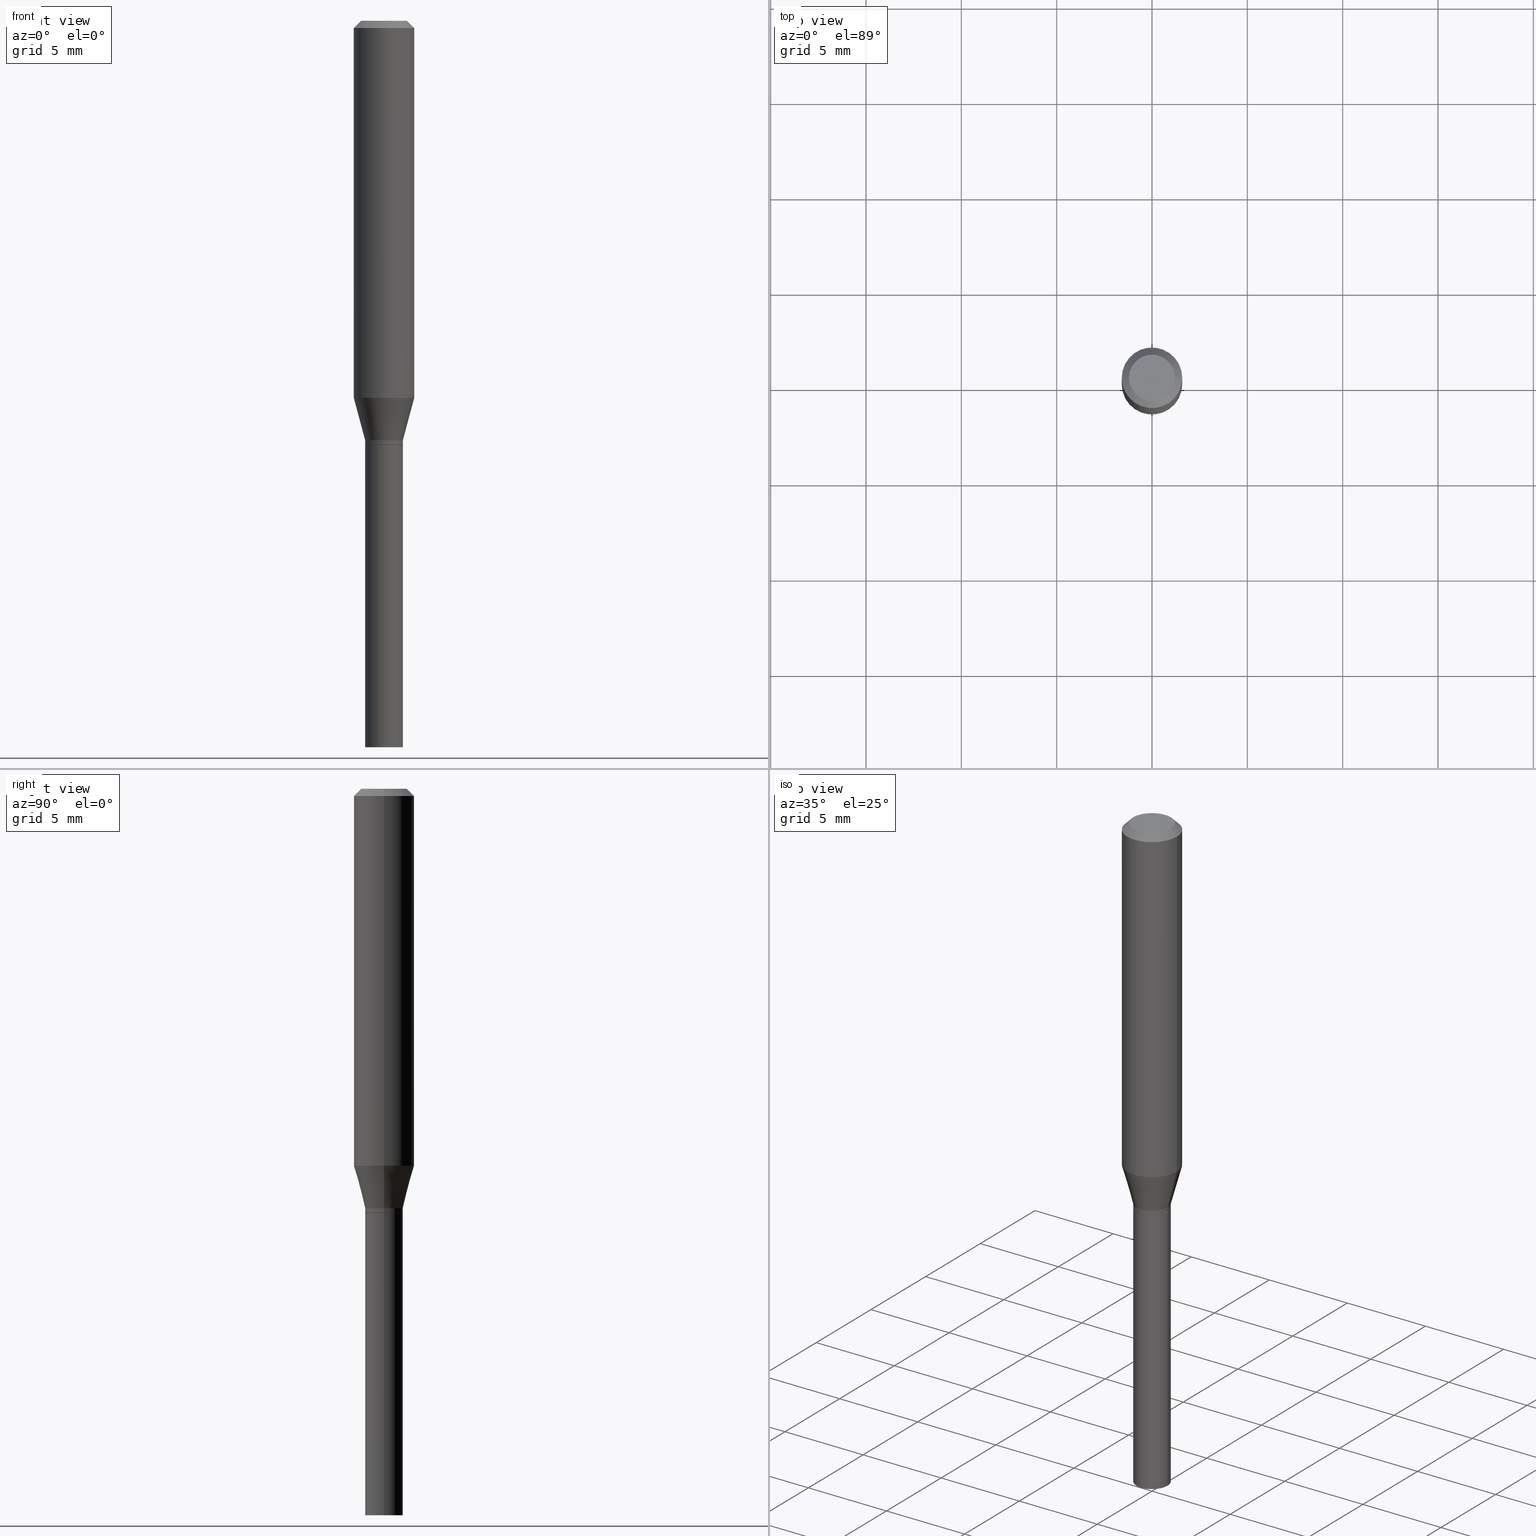
[diagram: canonical four-view strip — front | top / right | iso, engineering-drawing reading convention]
A machine part, canonical four-view strip (front | top / right | iso — engineering-drawing reading convention). The complete STEP part file that produces these views, byte-faithful:
ISO-10303-21;
HEADER;
FILE_DESCRIPTION (( 'STEP AP203' ),
    '1' );
FILE_NAME ('04227.STEP',
    '2024-03-14T17:24:22',
    ( '' ),
    ( '' ),
    'SwSTEP 2.0',
    'SolidWorks 2023',
    '' );
FILE_SCHEMA (( 'CONFIG_CONTROL_DESIGN' ));
ENDSEC;

DATA;
#1 = FACE_OUTER_BOUND ( 'NONE', #388, .T. ) ;
#2 = ORIENTED_EDGE ( 'NONE', *, *, #35, .F. ) ;
#3 = CARTESIAN_POINT ( 'NONE',  ( 3.668203209277705088E-31, -5.237222008264718399E-17, -0.01499999999999999944 ) ) ;
#4 = DESIGN_CONTEXT ( 'detailed design', #390, 'design' ) ;
#5 = LINE ( 'NONE', #8, #370 ) ;
#6 = CIRCLE ( 'NONE', #85, 0.03899999999999999994 ) ;
#7 = DIRECTION ( 'NONE',  ( 1.000000000000000000, -6.982962677686266711E-15, 4.876176775795935793E-29 ) ) ;
#8 = CARTESIAN_POINT ( 'NONE',  ( -0.03900000000000005546, 2.771116669464394665E-16, -1.918384685199416231E-30 ) ) ;
#9 = DIRECTION ( 'NONE',  ( -2.438088387897960049E-29, 3.491481338843145188E-15, 1.000000000000000000 ) ) ;
#10 = ORIENTED_EDGE ( 'NONE', *, *, #355, .F. ) ;
#11 = APPLICATION_PROTOCOL_DEFINITION ( 'international standard', 'config_control_design', 1994, #339 ) ;
#12 = EDGE_CURVE ( 'NONE', #397, #350, #5, .T. ) ;
#13 = DIRECTION ( 'NONE',  ( -2.445468806185136877E-29, 3.491481338843145188E-15, 1.000000000000000000 ) ) ;
#14 = CIRCLE ( 'NONE', #351, 0.03849999999999999256 ) ;
#15 = PRODUCT_DEFINITION_FORMATION_WITH_SPECIFIED_SOURCE ( 'ANY', '', #52, .NOT_KNOWN. ) ;
#16 = DIRECTION ( 'NONE',  ( 1.000000000000000000, -6.982962677686271444E-15, 0.000000000000000000 ) ) ;
#17 = DIRECTION ( 'NONE',  ( 0.2588190451025214611, 1.565188264969621573E-15, 0.9659258262890682012 ) ) ;
#18 = CARTESIAN_POINT ( 'NONE',  ( 0.03900000000000005546, -3.295958383867929689E-15, -0.8660000000000001030 ) ) ;
#19 = APPROVAL ( #444, 'UNSPECIFIED' ) ;
#20 = CIRCLE ( 'NONE', #195, 0.03900000000000005546 ) ;
#21 = APPROVAL_PERSON_ORGANIZATION ( #164, #229, #157 ) ;
#22 = EDGE_CURVE ( 'NONE', #329, #260, #121, .T. ) ;
#23 = CARTESIAN_POINT ( 'NONE',  ( 2.142230674218180125E-29, -3.058537652826596131E-15, -0.8760000000000001119 ) ) ;
#24 = DIRECTION ( 'NONE',  ( -0.7071067811865656694, 7.493145998870420424E-15, 0.7071067811865294761 ) ) ;
#25 = VERTEX_POINT ( 'NONE', #405 ) ;
#26 = CARTESIAN_POINT ( 'NONE',  ( 3.316907271900976096E-16, 0.04749999999999999362, 9.606345999275830148E-17 ) ) ;
#27 = VECTOR ( 'NONE', #419, 39.37007874015748143 ) ;
#28 = ORIENTED_EDGE ( 'NONE', *, *, #432, .T. ) ;
#29 = AXIS2_PLACEMENT_3D ( 'NONE', #413, #380, #105 ) ;
#30 = DIRECTION ( 'NONE',  ( -2.445468806185136597E-29, 3.491481338843145583E-15, 1.000000000000000000 ) ) ;
#31 = VERTEX_POINT ( 'NONE', #156 ) ;
#32 = CYLINDRICAL_SURFACE ( 'NONE', #270, 0.03900000000000005546 ) ;
#33 = EDGE_LOOP ( 'NONE', ( #181, #68, #353, #206 ) ) ;
#34 = FACE_OUTER_BOUND ( 'NONE', #33, .T. ) ;
#35 = EDGE_CURVE ( 'NONE', #439, #179, #226, .T. ) ;
#36 = DIRECTION ( 'NONE',  ( 1.000000000000000000, -6.982962677686262766E-15, 0.000000000000000000 ) ) ;
#37 = ORIENTED_EDGE ( 'NONE', *, *, #355, .T. ) ;
#38 = CARTESIAN_POINT ( 'NONE',  ( 0.03900000000000005546, -3.329127456586939440E-15, -0.8755000000000001670 ) ) ;
#39 = ORIENTED_EDGE ( 'NONE', *, *, #254, .F. ) ;
#40 = CC_DESIGN_DATE_AND_TIME_ASSIGNMENT ( #309, #448, ( #92 ) ) ;
#41 = CYLINDRICAL_SURFACE ( 'NONE', #464, 0.03900000000000005546 ) ;
#42 = ADVANCED_FACE ( 'NONE', ( #217 ), #51, .T. ) ;
#43 = VERTEX_POINT ( 'NONE', #221 ) ;
#44 = CONICAL_SURFACE ( 'NONE', #455, 0.06250000000000000000, 0.7853981633974309595 ) ;
#45 = DIRECTION ( 'NONE',  ( -2.445468806185136597E-29, 3.491481338843145583E-15, 1.000000000000000000 ) ) ;
#46 = CC_DESIGN_SECURITY_CLASSIFICATION ( #92, ( #15 ) ) ;
#47 = VERTEX_POINT ( 'NONE', #371 ) ;
#48 =( NAMED_UNIT ( * ) PLANE_ANGLE_UNIT ( ) SI_UNIT ( $, .RADIAN. ) );
#49 = EDGE_CURVE ( 'NONE', #212, #77, #264, .T. ) ;
#50 = LENGTH_MEASURE_WITH_UNIT ( LENGTH_MEASURE( 0.02539999999999999897 ), #162 );
#51 = CONICAL_SURFACE ( 'NONE', #417, 0.06250000000000000000, 0.7853981633974309595 ) ;
#52 = PRODUCT ( '04227', '04227', '', ( #188 ) ) ;
#53 = COORDINATED_UNIVERSAL_TIME_OFFSET ( 5, 0, .BEHIND. ) ;
#54 = CARTESIAN_POINT ( 'NONE',  ( -0.04749999999999999362, 3.578768372314219874E-16, 5.238176471756130292E-16 ) ) ;
#55 = COORDINATED_UNIVERSAL_TIME_OFFSET ( 5, 0, .BEHIND. ) ;
#56 = CARTESIAN_POINT ( 'NONE',  ( 0.06250000000000000000, -4.364351673553916694E-16, 3.047610484872459871E-30 ) ) ;
#57 = COORDINATED_UNIVERSAL_TIME_OFFSET ( 5, 0, .BEHIND. ) ;
#58 = DIRECTION ( 'NONE',  ( 1.000000000000000000, -6.982962677686267499E-15, 4.852736867747366768E-29 ) ) ;
#59 = AXIS2_PLACEMENT_3D ( 'NONE', #23, #272, #338 ) ;
#60 = APPROVAL_ROLE ( '' ) ;
#61 = DIRECTION ( 'NONE',  ( -2.445468806185136877E-29, 3.491481338843145188E-15, 1.000000000000000000 ) ) ;
#62 = SECURITY_CLASSIFICATION_LEVEL ( 'unclassified' ) ;
#63 = DIRECTION ( 'NONE',  ( -2.445468806185136877E-29, 3.491481338843145188E-15, 1.000000000000000000 ) ) ;
#64 = EDGE_LOOP ( 'NONE', ( #204, #262, #100, #143 ) ) ;
#65 = EDGE_CURVE ( 'NONE', #397, #329, #231, .T. ) ;
#66 = FACE_OUTER_BOUND ( 'NONE', #158, .T. ) ;
#67 = CIRCLE ( 'NONE', #108, 0.04749999999999999362 ) ;
#68 = ORIENTED_EDGE ( 'NONE', *, *, #224, .T. ) ;
#69 = APPROVAL_PERSON_ORGANIZATION ( #278, #19, #60 ) ;
#70 = CARTESIAN_POINT ( 'NONE',  ( -0.06250000000000000000, 4.440892098500626162E-16, -3.074334431409316114E-30 ) ) ;
#71 = MANIFOLD_SOLID_BREP ( 'Body-Move/Copy2[1]', #248 ) ;
#72 = MANIFOLD_SOLID_BREP ( 'Body-Move/Copy2[2]', #305 ) ;
#73 = DIRECTION ( 'NONE',  ( -1.000000000000000000, 6.982962677686265922E-15, -4.876176775795935793E-29 ) ) ;
#74 = EDGE_CURVE ( 'NONE', #77, #212, #67, .T. ) ;
#75 = ORIENTED_EDGE ( 'NONE', *, *, #129, .T. ) ;
#76 = DIRECTION ( 'NONE',  ( -2.445468806185136597E-29, 3.491481338843145583E-15, 1.000000000000000000 ) ) ;
#77 = VERTEX_POINT ( 'NONE', #54 ) ;
#78 = CIRCLE ( 'NONE', #435, 0.06250000000000000000 ) ;
#79 = VECTOR ( 'NONE', #13, 39.37007874015748143 ) ;
#80 = DIRECTION ( 'NONE',  ( -2.445468806185136597E-29, 3.491481338843145583E-15, 1.000000000000000000 ) ) ;
#81 = ORIENTED_EDGE ( 'NONE', *, *, #432, .F. ) ;
#82 = EDGE_LOOP ( 'NONE', ( #458, #37, #106, #153 ) ) ;
#83 =( NAMED_UNIT ( * ) SI_UNIT ( $, .STERADIAN. ) SOLID_ANGLE_UNIT ( ) );
#84 = CARTESIAN_POINT ( 'NONE',  ( 0.03900000000000005546, -2.723355444297648119E-16, 1.901708942560417734E-30 ) ) ;
#85 = AXIS2_PLACEMENT_3D ( 'NONE', #389, #210, #354 ) ;
#86 = PERSON_AND_ORGANIZATION ( #453, #99 ) ;
#87 = CC_DESIGN_APPROVAL ( #165, ( #92 ) ) ;
#88 = DIRECTION ( 'NONE',  ( 0.000000000000000000, 0.000000000000000000, 1.000000000000000000 ) ) ;
#89 = ADVANCED_FACE ( 'NONE', ( #197 ), #412, .F. ) ;
#90 = VECTOR ( 'NONE', #203, 39.37007874015748143 ) ;
#91 = ORIENTED_EDGE ( 'NONE', *, *, #274, .T. ) ;
#92 = SECURITY_CLASSIFICATION ( '', '', #62 ) ;
#93 = CARTESIAN_POINT ( 'NONE',  ( -0.03900000000000005546, -2.746511172491725164E-15, -0.8660000000000001030 ) ) ;
#94 = DIRECTION ( 'NONE',  ( -0.2588190451025214611, 5.211531920934551042E-15, 0.9659258262890682012 ) ) ;
#95 = CC_DESIGN_DATE_AND_TIME_ASSIGNMENT ( #124, #96, ( #396 ) ) ;
#96 = DATE_TIME_ROLE ( 'creation_date' ) ;
#97 = FACE_OUTER_BOUND ( 'NONE', #438, .T. ) ;
#98 = AXIS2_PLACEMENT_3D ( 'NONE', #215, #80, #395 ) ;
#99 = ORGANIZATION ( 'UNSPECIFIED', 'UNSPECIFIED', '' ) ;
#100 = ORIENTED_EDGE ( 'NONE', *, *, #139, .T. ) ;
#101 = DATE_AND_TIME ( #167, #436 ) ;
#102 = LINE ( 'NONE', #93, #376 ) ;
#103 = ORIENTED_EDGE ( 'NONE', *, *, #129, .F. ) ;
#104 = ADVANCED_FACE ( 'NONE', ( #171 ), #200, .T. ) ;
#105 = DIRECTION ( 'NONE',  ( 1.000000000000000000, -6.982962677686273810E-15, 0.000000000000000000 ) ) ;
#106 = ORIENTED_EDGE ( 'NONE', *, *, #238, .T. ) ;
#107 = DIRECTION ( 'NONE',  ( -2.445468806185136597E-29, 3.491481338843145583E-15, 1.000000000000000000 ) ) ;
#108 = AXIS2_PLACEMENT_3D ( 'NONE', #430, #457, #58 ) ;
#109 = DIRECTION ( 'NONE',  ( 2.438088387897960049E-29, -3.491481338843145188E-15, -1.000000000000000000 ) ) ;
#110 = EDGE_CURVE ( 'NONE', #260, #43, #243, .T. ) ;
#111 = DIRECTION ( 'NONE',  ( 1.000000000000000000, -6.982962677686261189E-15, 0.000000000000000000 ) ) ;
#112 = ORIENTED_EDGE ( 'NONE', *, *, #367, .T. ) ;
#113 = DIRECTION ( 'NONE',  ( -2.445468806185136597E-29, 3.491481338843145583E-15, 1.000000000000000000 ) ) ;
#114 = ORIENTED_EDGE ( 'NONE', *, *, #283, .T. ) ;
#115 = CIRCLE ( 'NONE', #123, 0.03900000000000005546 ) ;
#116 = CARTESIAN_POINT ( 'NONE',  ( 1.903300561080647915E-29, -2.717408774307497209E-15, -0.7782968060221319151 ) ) ;
#117 = EDGE_LOOP ( 'NONE', ( #39, #433, #28, #420 ) ) ;
#118 = APPROVAL_STATUS ( 'not_yet_approved' ) ;
#119 = DIRECTION ( 'NONE',  ( 2.445468806185136597E-29, -3.491481338843145583E-15, -1.000000000000000000 ) ) ;
#120 = CARTESIAN_POINT ( 'NONE',  ( 0.000000000000000000, 0.000000000000000000, 0.000000000000000000 ) ) ;
#121 = LINE ( 'NONE', #84, #168 ) ;
#122 = AXIS2_PLACEMENT_3D ( 'NONE', #149, #437, #255 ) ;
#123 = AXIS2_PLACEMENT_3D ( 'NONE', #445, #310, #132 ) ;
#124 = DATE_AND_TIME ( #266, #288 ) ;
#125 = AXIS2_PLACEMENT_3D ( 'NONE', #369, #9, #336 ) ;
#126 = PERSON_AND_ORGANIZATION ( #453, #99 ) ;
#127 = PRODUCT_DEFINITION_SHAPE ( 'NONE', 'NONE',  #396 ) ;
#128 = CC_DESIGN_PERSON_AND_ORGANIZATION_ASSIGNMENT ( #386, #202, ( #15 ) ) ;
#129 = EDGE_CURVE ( 'NONE', #25, #329, #141, .T. ) ;
#130 = CALENDAR_DATE ( 2024, 14, 3 ) ;
#131 = CIRCLE ( 'NONE', #391, 0.06250000000000000000 ) ;
#132 = DIRECTION ( 'NONE',  ( 1.000000000000000000, -6.982962677686273810E-15, 0.000000000000000000 ) ) ;
#133 = PERSON_AND_ORGANIZATION ( #453, #99 ) ;
#134 = CARTESIAN_POINT ( 'NONE',  ( 2.117775986156328580E-29, -3.023622839438164482E-15, -0.8660000000000001030 ) ) ;
#135 = APPROVAL_ROLE ( '' ) ;
#136 = CARTESIAN_POINT ( 'NONE',  ( -0.06250000000000000000, -2.273319564457434988E-15, -0.7782968060221319151 ) ) ;
#137 = ORIENTED_EDGE ( 'NONE', *, *, #367, .F. ) ;
#138 = DIRECTION ( 'NONE',  ( 1.000000000000000000, -6.982962677686265922E-15, 4.876176775795935793E-29 ) ) ;
#139 = EDGE_CURVE ( 'NONE', #77, #357, #175, .T. ) ;
#140 = AXIS2_PLACEMENT_3D ( 'NONE', #398, #180, #150 ) ;
#141 = LINE ( 'NONE', #240, #146 ) ;
#142 = FACE_OUTER_BOUND ( 'NONE', #117, .T. ) ;
#143 = ORIENTED_EDGE ( 'NONE', *, *, #328, .T. ) ;
#144 = ADVANCED_FACE ( 'NONE', ( #346 ), #344, .T. ) ;
#145 = DIRECTION ( 'NONE',  ( -2.445468806185136597E-29, 3.491481338843145583E-15, 1.000000000000000000 ) ) ;
#146 = VECTOR ( 'NONE', #313, 39.37007874015748143 ) ;
#147 = VERTEX_POINT ( 'NONE', #136 ) ;
#148 = CARTESIAN_POINT ( 'NONE',  ( 1.903300561080647915E-29, -2.717408774307497209E-15, -0.7782968060221319151 ) ) ;
#149 = CARTESIAN_POINT ( 'NONE',  ( 3.668203209277704895E-29, -5.237222008264718177E-15, -1.500000000000000222 ) ) ;
#150 = DIRECTION ( 'NONE',  ( 1.000000000000000000, -6.982962677686258033E-15, 0.000000000000000000 ) ) ;
#151 = ORIENTED_EDGE ( 'NONE', *, *, #238, .F. ) ;
#152 = DIRECTION ( 'NONE',  ( -2.445468806185136877E-29, 3.491481338843145188E-15, 1.000000000000000000 ) ) ;
#153 = ORIENTED_EDGE ( 'NONE', *, *, #328, .F. ) ;
#154 = CONICAL_SURFACE ( 'NONE', #29, 0.03900000000000005546, 0.2617993877991501295 ) ;
#155 = LINE ( 'NONE', #223, #79 ) ;
#156 = CARTESIAN_POINT ( 'NONE',  ( 0.03899999999999999994, -3.330873197256360943E-15, -0.8760000000000001119 ) ) ;
#157 = APPROVAL_ROLE ( '' ) ;
#158 = EDGE_LOOP ( 'NONE', ( #225, #244, #75, #314 ) ) ;
#159 = EDGE_CURVE ( 'NONE', #350, #260, #115, .T. ) ;
#160 = PERSON_AND_ORGANIZATION_ROLE ( 'creator' ) ;
#161 = CONICAL_SURFACE ( 'NONE', #257, 0.03900000000000005546, 0.2617993877991501295 ) ;
#162 =( LENGTH_UNIT ( ) NAMED_UNIT ( * ) SI_UNIT ( $, .METRE. ) );
#163 = LOCAL_TIME ( 13, 24, 22.00000000000000000, #440 ) ;
#164 = PERSON_AND_ORGANIZATION ( #453, #99 ) ;
#165 = APPROVAL ( #418, 'UNSPECIFIED' ) ;
#166 = CARTESIAN_POINT ( 'NONE',  ( 0.03900000000000005546, -3.295958383867929689E-15, -0.8660000000000001030 ) ) ;
#167 = CALENDAR_DATE ( 2024, 14, 3 ) ;
#168 = VECTOR ( 'NONE', #185, 39.37007874015748143 ) ;
#169 = VECTOR ( 'NONE', #24, 39.37007874015748143 ) ;
#170 = CARTESIAN_POINT ( 'NONE',  ( 0.000000000000000000, 0.000000000000000000, 0.000000000000000000 ) ) ;
#171 = FACE_OUTER_BOUND ( 'NONE', #333, .T. ) ;
#172 = EDGE_CURVE ( 'NONE', #212, #365, #173, .T. ) ;
#173 = LINE ( 'NONE', #246, #27 ) ;
#174 = VERTEX_POINT ( 'NONE', #277 ) ;
#175 = LINE ( 'NONE', #452, #90 ) ;
#176 = AXIS2_PLACEMENT_3D ( 'NONE', #134, #387, #205 ) ;
#177 = EDGE_LOOP ( 'NONE', ( #311, #187 ) ) ;
#178 = DIRECTION ( 'NONE',  ( 1.000000000000000000, -6.982962677686271444E-15, 0.000000000000000000 ) ) ;
#179 = VERTEX_POINT ( 'NONE', #383 ) ;
#180 = DIRECTION ( 'NONE',  ( -2.445468806185136597E-29, 3.491481338843145583E-15, 1.000000000000000000 ) ) ;
#181 = ORIENTED_EDGE ( 'NONE', *, *, #218, .T. ) ;
#182 = CARTESIAN_POINT ( 'NONE',  ( 3.668203209277705088E-31, -5.237222008264718399E-17, -0.01499999999999999944 ) ) ;
#183 = CARTESIAN_POINT ( 'NONE',  ( 2.141007939815087324E-29, -3.056791912157174628E-15, -0.8755000000000001670 ) ) ;
#184 = DIRECTION ( 'NONE',  ( 2.438088387897960049E-29, -3.491481338843145188E-15, -1.000000000000000000 ) ) ;
#185 = DIRECTION ( 'NONE',  ( -2.445468806185136877E-29, 3.491481338843145188E-15, 1.000000000000000000 ) ) ;
#186 = CARTESIAN_POINT ( 'NONE',  ( -0.03900000000000005546, -2.509915368474579681E-15, -0.8660000000000001030 ) ) ;
#187 = ORIENTED_EDGE ( 'NONE', *, *, #321, .F. ) ;
#188 = MECHANICAL_CONTEXT ( 'NONE', #339, 'mechanical' ) ;
#189 = DIRECTION ( 'NONE',  ( -2.445468806185136597E-29, 3.491481338843145583E-15, 1.000000000000000000 ) ) ;
#190 = CIRCLE ( 'NONE', #341, 0.06250000000000000000 ) ;
#191 = EDGE_LOOP ( 'NONE', ( #320, #2 ) ) ;
#192 = PERSON_AND_ORGANIZATION_ROLE ( 'design_owner' ) ;
#193 = VECTOR ( 'NONE', #152, 39.37007874015748143 ) ;
#194 = FACE_OUTER_BOUND ( 'NONE', #191, .T. ) ;
#195 = AXIS2_PLACEMENT_3D ( 'NONE', #465, #424, #111 ) ;
#196 = PERSON_AND_ORGANIZATION ( #453, #99 ) ;
#197 = FACE_OUTER_BOUND ( 'NONE', #177, .T. ) ;
#198 = CARTESIAN_POINT ( 'NONE',  ( -0.03849999999999999256, -2.784978699558957711E-15, -0.8760000000000001119 ) ) ;
#199 = APPROVAL_DATE_TIME ( #234, #165 ) ;
#200 = CYLINDRICAL_SURFACE ( 'NONE', #323, 0.03899999999999999994 ) ;
#201 = ADVANCED_FACE ( 'NONE', ( #236 ), #44, .T. ) ;
#202 = PERSON_AND_ORGANIZATION_ROLE ( 'design_supplier' ) ;
#203 = DIRECTION ( 'NONE',  ( -0.7071067811865352493, 2.468850131082128476E-15, -0.7071067811865597852 ) ) ;
#204 = ORIENTED_EDGE ( 'NONE', *, *, #172, .F. ) ;
#205 = DIRECTION ( 'NONE',  ( 1.000000000000000000, -6.982962677686273810E-15, 0.000000000000000000 ) ) ;
#206 = ORIENTED_EDGE ( 'NONE', *, *, #110, .F. ) ;
#207 = DIRECTION ( 'NONE',  ( -2.445468806185136597E-29, 3.491481338843145583E-15, 1.000000000000000000 ) ) ;
#208 = AXIS2_PLACEMENT_3D ( 'NONE', #148, #76, #36 ) ;
#209 = ORIENTED_EDGE ( 'NONE', *, *, #74, .T. ) ;
#210 = DIRECTION ( 'NONE',  ( -2.445468806185136597E-29, 3.491481338843145583E-15, 1.000000000000000000 ) ) ;
#211 = CC_DESIGN_PERSON_AND_ORGANIZATION_ASSIGNMENT ( #86, #160, ( #396 ) ) ;
#212 = VERTEX_POINT ( 'NONE', #450 ) ;
#213 = DIRECTION ( 'NONE',  ( 1.000000000000000000, -6.982962677686262766E-15, 0.000000000000000000 ) ) ;
#214 = ORIENTED_EDGE ( 'NONE', *, *, #402, .F. ) ;
#215 = CARTESIAN_POINT ( 'NONE',  ( 2.142230674218180125E-29, -3.058537652826596131E-15, -0.8760000000000001119 ) ) ;
#216 = AXIS2_PLACEMENT_3D ( 'NONE', #368, #189, #378 ) ;
#217 = FACE_OUTER_BOUND ( 'NONE', #64, .T. ) ;
#218 = EDGE_CURVE ( 'NONE', #260, #350, #399, .T. ) ;
#219 = DIRECTION ( 'NONE',  ( 1.000000000000000000, -6.982962677686267499E-15, 4.876176775795935793E-29 ) ) ;
#220 = EDGE_LOOP ( 'NONE', ( #298, #331, #403, #247 ) ) ;
#221 = CARTESIAN_POINT ( 'NONE',  ( 0.06250000000000000000, -3.153843941662889668E-15, -0.7782968060221319151 ) ) ;
#222 = PRODUCT_RELATED_PRODUCT_CATEGORY ( 'detail', '', ( #52 ) ) ;
#223 = CARTESIAN_POINT ( 'NONE',  ( 0.03899999999999999994, -2.723355444297643682E-16, 1.901708942560414931E-30 ) ) ;
#224 = EDGE_CURVE ( 'NONE', #350, #147, #102, .T. ) ;
#225 = ORIENTED_EDGE ( 'NONE', *, *, #245, .F. ) ;
#226 = CIRCLE ( 'NONE', #122, 0.03899999999999999994 ) ;
#227 = CIRCLE ( 'NONE', #208, 0.06250000000000000000 ) ;
#228 = CARTESIAN_POINT ( 'NONE',  ( 0.000000000000000000, 0.000000000000000000, 0.000000000000000000 ) ) ;
#229 = APPROVAL ( #118, 'UNSPECIFIED' ) ;
#230 = DIRECTION ( 'NONE',  ( -2.445468806185136597E-29, 3.491481338843145583E-15, 1.000000000000000000 ) ) ;
#231 = CIRCLE ( 'NONE', #441, 0.03900000000000005546 ) ;
#232 = ADVANCED_FACE ( 'NONE', ( #415 ), #154, .T. ) ;
#233 = AXIS2_PLACEMENT_3D ( 'NONE', #279, #304, #421 ) ;
#234 = DATE_AND_TIME ( #271, #265 ) ;
#235 = DIRECTION ( 'NONE',  ( -1.000000000000000000, 6.982962677686266711E-15, 0.000000000000000000 ) ) ;
#236 = FACE_OUTER_BOUND ( 'NONE', #422, .T. ) ;
#237 = LINE ( 'NONE', #340, #239 ) ;
#238 = EDGE_CURVE ( 'NONE', #43, #365, #315, .T. ) ;
#239 = VECTOR ( 'NONE', #63, 39.37007874015748143 ) ;
#240 = CARTESIAN_POINT ( 'NONE',  ( 0.03849999999999999256, -3.327381715917517542E-15, -0.8760000000000001119 ) ) ;
#241 = AXIS2_PLACEMENT_3D ( 'NONE', #120, #88, #442 ) ;
#242 = ORIENTED_EDGE ( 'NONE', *, *, #22, .F. ) ;
#243 = LINE ( 'NONE', #166, #250 ) ;
#244 = ORIENTED_EDGE ( 'NONE', *, *, #321, .T. ) ;
#245 = EDGE_CURVE ( 'NONE', #174, #397, #381, .T. ) ;
#246 = CARTESIAN_POINT ( 'NONE',  ( 0.06250000000000000000, -4.811533449433679005E-16, -0.01499999999999999944 ) ) ;
#247 = ORIENTED_EDGE ( 'NONE', *, *, #159, .F. ) ;
#248 = CLOSED_SHELL ( 'NONE', ( #104, #416, #385, #356 ) ) ;
#249 = CARTESIAN_POINT ( 'NONE',  ( 0.000000000000000000, 0.000000000000000000, 0.000000000000000000 ) ) ;
#250 = VECTOR ( 'NONE', #17, 39.37007874015747433 ) ;
#251 = ORIENTED_EDGE ( 'NONE', *, *, #335, .T. ) ;
#252 = CARTESIAN_POINT ( 'NONE',  ( 2.142230674218180125E-29, -3.058537652826596131E-15, -0.8760000000000001119 ) ) ;
#253 = DIRECTION ( 'NONE',  ( 1.000000000000000000, -6.982962677686266711E-15, 0.000000000000000000 ) ) ;
#254 = EDGE_CURVE ( 'NONE', #439, #47, #237, .T. ) ;
#255 = DIRECTION ( 'NONE',  ( 1.000000000000000000, -6.982962677686258033E-15, 0.000000000000000000 ) ) ;
#256 = DIRECTION ( 'NONE',  ( 1.000000000000000000, -6.982962677686270655E-15, 0.000000000000000000 ) ) ;
#257 = AXIS2_PLACEMENT_3D ( 'NONE', #293, #145, #431 ) ;
#258 = ORIENTED_EDGE ( 'NONE', *, *, #254, .T. ) ;
#259 = DIRECTION ( 'NONE',  ( -2.445468806185136597E-29, 3.491481338843145583E-15, 1.000000000000000000 ) ) ;
#260 = VERTEX_POINT ( 'NONE', #18 ) ;
#261 = CALENDAR_DATE ( 2024, 14, 3 ) ;
#262 = ORIENTED_EDGE ( 'NONE', *, *, #74, .F. ) ;
#263 = PLANE ( 'NONE',  #125 ) ;
#264 = CIRCLE ( 'NONE', #216, 0.04749999999999999362 ) ;
#265 = LOCAL_TIME ( 13, 24, 22.00000000000000000, #55 ) ;
#266 = CALENDAR_DATE ( 2024, 14, 3 ) ;
#267 = DATE_AND_TIME ( #261, #163 ) ;
#268 = ADVANCED_FACE ( 'NONE', ( #97 ), #349, .F. ) ;
#269 = ORIENTED_EDGE ( 'NONE', *, *, #159, .T. ) ;
#270 = AXIS2_PLACEMENT_3D ( 'NONE', #249, #429, #219 ) ;
#271 = CALENDAR_DATE ( 2024, 14, 3 ) ;
#272 = DIRECTION ( 'NONE',  ( -2.438088387897960049E-29, 3.491481338843145188E-15, 1.000000000000000000 ) ) ;
#273 = PERSON_AND_ORGANIZATION_ROLE ( 'classification_officer' ) ;
#274 = EDGE_CURVE ( 'NONE', #147, #357, #358, .T. ) ;
#275 = DIRECTION ( 'NONE',  ( -2.445468806185136597E-29, 3.491481338843145583E-15, 1.000000000000000000 ) ) ;
#276 = SHAPE_DEFINITION_REPRESENTATION ( #127, #375 ) ;
#277 = CARTESIAN_POINT ( 'NONE',  ( -0.03849999999999999256, -2.782329472384846510E-15, -0.8760000000000001119 ) ) ;
#278 = PERSON_AND_ORGANIZATION ( #453, #99 ) ;
#279 = CARTESIAN_POINT ( 'NONE',  ( 0.000000000000000000, 0.000000000000000000, 0.000000000000000000 ) ) ;
#280 = LOCAL_TIME ( 13, 24, 22.00000000000000000, #57 ) ;
#281 = DIRECTION ( 'NONE',  ( -1.000000000000000000, 6.982962677686266711E-15, 0.000000000000000000 ) ) ;
#282 = ORIENTED_EDGE ( 'NONE', *, *, #402, .T. ) ;
#283 = EDGE_CURVE ( 'NONE', #25, #174, #301, .T. ) ;
#284 = CYLINDRICAL_SURFACE ( 'NONE', #287, 0.03899999999999999994 ) ;
#285 = EDGE_LOOP ( 'NONE', ( #251, #326 ) ) ;
#286 = DIRECTION ( 'NONE',  ( -1.000000000000000000, 6.982962677686265922E-15, -4.876176775795935793E-29 ) ) ;
#287 = AXIS2_PLACEMENT_3D ( 'NONE', #394, #290, #325 ) ;
#288 = LOCAL_TIME ( 13, 24, 22.00000000000000000, #300 ) ;
#289 = ORIENTED_EDGE ( 'NONE', *, *, #12, .T. ) ;
#290 = DIRECTION ( 'NONE',  ( -2.445468806185136597E-29, 3.491481338843145583E-15, 1.000000000000000000 ) ) ;
#291 = EDGE_CURVE ( 'NONE', #47, #31, #446, .T. ) ;
#292 = DIRECTION ( 'NONE',  ( 1.000000000000000000, -6.982962677686261189E-15, 0.000000000000000000 ) ) ;
#293 = CARTESIAN_POINT ( 'NONE',  ( 2.117775986156328580E-29, -3.023622839438164482E-15, -0.8660000000000001030 ) ) ;
#294 = ORIENTED_EDGE ( 'NONE', *, *, #110, .T. ) ;
#295 = DIRECTION ( 'NONE',  ( -2.445468806185136597E-29, 3.491481338843145583E-15, 1.000000000000000000 ) ) ;
#296 = DIRECTION ( 'NONE',  ( -2.445468806185136877E-29, 3.491481338843145188E-15, 1.000000000000000000 ) ) ;
#297 = CARTESIAN_POINT ( 'NONE',  ( -0.03899999999999999994, -3.870768163599218033E-15, -1.500000000000000222 ) ) ;
#298 = ORIENTED_EDGE ( 'NONE', *, *, #12, .F. ) ;
#299 = ORIENTED_EDGE ( 'NONE', *, *, #373, .T. ) ;
#300 = COORDINATED_UNIVERSAL_TIME_OFFSET ( 5, 0, .BEHIND. ) ;
#301 = CIRCLE ( 'NONE', #98, 0.03849999999999999256 ) ;
#302 = EDGE_CURVE ( 'NONE', #179, #439, #411, .T. ) ;
#303 = CYLINDRICAL_SURFACE ( 'NONE', #342, 0.06250000000000000000 ) ;
#304 = DIRECTION ( 'NONE',  ( -2.445468806185136597E-29, 3.491481338843145583E-15, 1.000000000000000000 ) ) ;
#305 = CLOSED_SHELL ( 'NONE', ( #406, #407, #201, #443, #306, #232, #144, #42, #268, #89, #377, #348 ) ) ;
#306 = ADVANCED_FACE ( 'NONE', ( #34 ), #161, .T. ) ;
#307 = AXIS2_PLACEMENT_3D ( 'NONE', #317, #107, #256 ) ;
#308 = DIRECTION ( 'NONE',  ( 2.445468806185136597E-29, -3.491481338843145583E-15, -1.000000000000000000 ) ) ;
#309 = DATE_AND_TIME ( #130, #280 ) ;
#310 = DIRECTION ( 'NONE',  ( -2.445468806185136597E-29, 3.491481338843145583E-15, 1.000000000000000000 ) ) ;
#311 = ORIENTED_EDGE ( 'NONE', *, *, #283, .F. ) ;
#312 = PERSON_AND_ORGANIZATION ( #453, #99 ) ;
#313 = DIRECTION ( 'NONE',  ( 0.7071067811865656694, -2.468850131082446387E-15, 0.7071067811865294761 ) ) ;
#314 = ORIENTED_EDGE ( 'NONE', *, *, #65, .F. ) ;
#315 = LINE ( 'NONE', #56, #382 ) ;
#316 =( GEOMETRIC_REPRESENTATION_CONTEXT ( 3 ) GLOBAL_UNCERTAINTY_ASSIGNED_CONTEXT ( ( #379 ) ) GLOBAL_UNIT_ASSIGNED_CONTEXT ( ( #374, #48, #83 ) ) REPRESENTATION_CONTEXT ( 'NONE', 'WORKASPACE' ) );
#317 = CARTESIAN_POINT ( 'NONE',  ( 2.142230674218180125E-29, -3.058537652826596131E-15, -0.8760000000000001119 ) ) ;
#318 = EDGE_LOOP ( 'NONE', ( #299, #91, #137, #151 ) ) ;
#319 = CARTESIAN_POINT ( 'NONE',  ( 2.142230674218180125E-29, -3.058537652826596131E-15, -0.8760000000000001119 ) ) ;
#320 = ORIENTED_EDGE ( 'NONE', *, *, #302, .F. ) ;
#321 = EDGE_CURVE ( 'NONE', #174, #25, #14, .T. ) ;
#322 = CARTESIAN_POINT ( 'NONE',  ( -0.03900000000000005546, -2.779680245210734915E-15, -0.8755000000000001670 ) ) ;
#323 = AXIS2_PLACEMENT_3D ( 'NONE', #170, #275, #138 ) ;
#324 = DIRECTION ( 'NONE',  ( -2.445468806185136597E-29, 3.491481338843145583E-15, 1.000000000000000000 ) ) ;
#325 = DIRECTION ( 'NONE',  ( 1.000000000000000000, -6.982962677686265922E-15, 4.876176775795935793E-29 ) ) ;
#326 = ORIENTED_EDGE ( 'NONE', *, *, #291, .T. ) ;
#327 = PLANE ( 'NONE',  #330 ) ;
#328 = EDGE_CURVE ( 'NONE', #357, #365, #78, .T. ) ;
#329 = VERTEX_POINT ( 'NONE', #38 ) ;
#330 = AXIS2_PLACEMENT_3D ( 'NONE', #461, #184, #73 ) ;
#331 = ORIENTED_EDGE ( 'NONE', *, *, #65, .T. ) ;
#332 = FACE_OUTER_BOUND ( 'NONE', #425, .T. ) ;
#333 = EDGE_LOOP ( 'NONE', ( #462, #258, #451, #81 ) ) ;
#334 = CARTESIAN_POINT ( 'NONE',  ( 0.000000000000000000, 0.000000000000000000, 0.000000000000000000 ) ) ;
#335 = EDGE_CURVE ( 'NONE', #31, #47, #6, .T. ) ;
#336 = DIRECTION ( 'NONE',  ( 1.000000000000000000, -6.982962677686265922E-15, 4.876176775795935793E-29 ) ) ;
#337 = AXIS2_PLACEMENT_3D ( 'NONE', #26, #109, #286 ) ;
#338 = DIRECTION ( 'NONE',  ( 1.000000000000000000, -6.982962677686265922E-15, 4.876176775795935793E-29 ) ) ;
#339 = APPLICATION_CONTEXT ( 'configuration controlled 3d designs of mechanical parts and assemblies' ) ;
#340 = CARTESIAN_POINT ( 'NONE',  ( -0.03899999999999999994, 2.771116669464390721E-16, -1.918384685199413078E-30 ) ) ;
#341 = AXIS2_PLACEMENT_3D ( 'NONE', #116, #30, #213 ) ;
#342 = AXIS2_PLACEMENT_3D ( 'NONE', #334, #45, #7 ) ;
#343 = APPROVAL_DATE_TIME ( #101, #19 ) ;
#344 = CYLINDRICAL_SURFACE ( 'NONE', #233, 0.06250000000000000000 ) ;
#345 = DIMENSIONAL_EXPONENTS ( 1.000000000000000000, 0.000000000000000000, 0.000000000000000000, 0.000000000000000000, 0.000000000000000000, 0.000000000000000000, 0.000000000000000000 ) ;
#346 = FACE_OUTER_BOUND ( 'NONE', #82, .T. ) ;
#347 = ORIENTED_EDGE ( 'NONE', *, *, #218, .F. ) ;
#348 = ADVANCED_FACE ( 'NONE', ( #428 ), #32, .T. ) ;
#349 = PLANE ( 'NONE',  #337 ) ;
#350 = VERTEX_POINT ( 'NONE', #186 ) ;
#351 = AXIS2_PLACEMENT_3D ( 'NONE', #319, #113, #360 ) ;
#352 = CARTESIAN_POINT ( 'NONE',  ( 0.06250000000000000000, -4.888073874380388472E-16, -0.01499999999999999944 ) ) ;
#353 = ORIENTED_EDGE ( 'NONE', *, *, #373, .F. ) ;
#354 = DIRECTION ( 'NONE',  ( 1.000000000000000000, -6.982962677686270655E-15, 0.000000000000000000 ) ) ;
#355 = EDGE_CURVE ( 'NONE', #147, #43, #227, .T. ) ;
#356 = ADVANCED_FACE ( 'NONE', ( #459 ), #327, .F. ) ;
#357 = VERTEX_POINT ( 'NONE', #364 ) ;
#358 = LINE ( 'NONE', #70, #193 ) ;
#359 = ORIENTED_EDGE ( 'NONE', *, *, #139, .F. ) ;
#360 = DIRECTION ( 'NONE',  ( 1.000000000000000000, -6.982962677686271444E-15, 0.000000000000000000 ) ) ;
#361 = CC_DESIGN_APPROVAL ( #19, ( #15 ) ) ;
#362 = ORIENTED_EDGE ( 'NONE', *, *, #49, .T. ) ;
#363 = CC_DESIGN_PERSON_AND_ORGANIZATION_ASSIGNMENT ( #133, #273, ( #92 ) ) ;
#364 = CARTESIAN_POINT ( 'NONE',  ( -0.06250000000000000000, -9.408012873450095281E-16, -0.01499999999999999944 ) ) ;
#365 = VERTEX_POINT ( 'NONE', #352 ) ;
#366 = APPLICATION_PROTOCOL_DEFINITION ( 'international standard', 'config_control_design', 1994, #390 ) ;
#367 = EDGE_CURVE ( 'NONE', #365, #357, #131, .T. ) ;
#368 = CARTESIAN_POINT ( 'NONE',  ( -1.280979716297259255E-44, 1.828899540070384152E-30, 5.238176471756153958E-16 ) ) ;
#369 = CARTESIAN_POINT ( 'NONE',  ( 3.576687321579069994E-29, -5.368277968210015545E-15, -1.500000000000000222 ) ) ;
#370 = VECTOR ( 'NONE', #296, 39.37007874015748143 ) ;
#371 = CARTESIAN_POINT ( 'NONE',  ( -0.03899999999999999994, -3.870768163599218033E-15, -0.8760000000000001119 ) ) ;
#372 = FACE_OUTER_BOUND ( 'NONE', #318, .T. ) ;
#373 = EDGE_CURVE ( 'NONE', #43, #147, #190, .T. ) ;
#374 =( CONVERSION_BASED_UNIT ( 'INCH', #50 ) LENGTH_UNIT ( ) NAMED_UNIT ( #345 ) );
#375 = ADVANCED_BREP_SHAPE_REPRESENTATION ( '04227', ( #71, #72, #241 ), #316 ) ;
#376 = VECTOR ( 'NONE', #94, 39.37007874015747433 ) ;
#377 = ADVANCED_FACE ( 'NONE', ( #66 ), #426, .T. ) ;
#378 = DIRECTION ( 'NONE',  ( 1.000000000000000000, -6.982962677686267499E-15, 4.852736867747366768E-29 ) ) ;
#379 = UNCERTAINTY_MEASURE_WITH_UNIT (LENGTH_MEASURE( 1.000000000000000082E-05 ), #374, 'distance_accuracy_value', 'NONE');
#380 = DIRECTION ( 'NONE',  ( -2.445468806185136597E-29, 3.491481338843145583E-15, 1.000000000000000000 ) ) ;
#381 = LINE ( 'NONE', #198, #169 ) ;
#382 = VECTOR ( 'NONE', #61, 39.37007874015748143 ) ;
#383 = CARTESIAN_POINT ( 'NONE',  ( 0.03899999999999999994, -5.509557552694482989E-15, -1.500000000000000222 ) ) ;
#384 = EDGE_LOOP ( 'NONE', ( #454, #269, #294, #10 ) ) ;
#385 = ADVANCED_FACE ( 'NONE', ( #142 ), #284, .T. ) ;
#386 = PERSON_AND_ORGANIZATION ( #453, #99 ) ;
#387 = DIRECTION ( 'NONE',  ( -2.445468806185136597E-29, 3.491481338843145583E-15, 1.000000000000000000 ) ) ;
#388 = EDGE_LOOP ( 'NONE', ( #282, #289, #347, #242 ) ) ;
#389 = CARTESIAN_POINT ( 'NONE',  ( 2.142230674218180125E-29, -3.058537652826596131E-15, -0.8760000000000001119 ) ) ;
#390 = APPLICATION_CONTEXT ( 'configuration controlled 3d designs of mechanical parts and assemblies' ) ;
#391 = AXIS2_PLACEMENT_3D ( 'NONE', #3, #434, #253 ) ;
#392 = CC_DESIGN_PERSON_AND_ORGANIZATION_ASSIGNMENT ( #312, #414, ( #15 ) ) ;
#393 = DIRECTION ( 'NONE',  ( 1.000000000000000000, -6.982962677686266711E-15, 0.000000000000000000 ) ) ;
#394 = CARTESIAN_POINT ( 'NONE',  ( 0.000000000000000000, 0.000000000000000000, 0.000000000000000000 ) ) ;
#395 = DIRECTION ( 'NONE',  ( 1.000000000000000000, -6.982962677686271444E-15, 0.000000000000000000 ) ) ;
#396 = PRODUCT_DEFINITION ( 'UNKNOWN', '', #15, #4 ) ;
#397 = VERTEX_POINT ( 'NONE', #322 ) ;
#398 = CARTESIAN_POINT ( 'NONE',  ( 3.668203209277704895E-29, -5.237222008264718177E-15, -1.500000000000000222 ) ) ;
#399 = CIRCLE ( 'NONE', #176, 0.03900000000000005546 ) ;
#400 = CONICAL_SURFACE ( 'NONE', #456, 0.03849999999999999256, 0.7853981633974739252 ) ;
#401 = ORIENTED_EDGE ( 'NONE', *, *, #172, .T. ) ;
#402 = EDGE_CURVE ( 'NONE', #329, #397, #20, .T. ) ;
#403 = ORIENTED_EDGE ( 'NONE', *, *, #22, .T. ) ;
#404 = APPROVAL_DATE_TIME ( #267, #229 ) ;
#405 = CARTESIAN_POINT ( 'NONE',  ( 0.03849999999999999256, -3.327381715917517542E-15, -0.8760000000000001119 ) ) ;
#406 = ADVANCED_FACE ( 'NONE', ( #1 ), #41, .T. ) ;
#407 = ADVANCED_FACE ( 'NONE', ( #332 ), #400, .T. ) ;
#408 = CARTESIAN_POINT ( 'NONE',  ( 2.142230674218180125E-29, -3.058537652826596131E-15, -0.8760000000000001119 ) ) ;
#409 = DIRECTION ( 'NONE',  ( 1.000000000000000000, -6.982962677686267499E-15, 4.876176775795935793E-29 ) ) ;
#410 = ORIENTED_EDGE ( 'NONE', *, *, #49, .F. ) ;
#411 = CIRCLE ( 'NONE', #140, 0.03899999999999999994 ) ;
#412 = PLANE ( 'NONE',  #59 ) ;
#413 = CARTESIAN_POINT ( 'NONE',  ( 2.117775986156328580E-29, -3.023622839438164482E-15, -0.8660000000000001030 ) ) ;
#414 = PERSON_AND_ORGANIZATION_ROLE ( 'creator' ) ;
#415 = FACE_OUTER_BOUND ( 'NONE', #384, .T. ) ;
#416 = ADVANCED_FACE ( 'NONE', ( #194 ), #263, .F. ) ;
#417 = AXIS2_PLACEMENT_3D ( 'NONE', #466, #119, #235 ) ;
#418 = APPROVAL_STATUS ( 'not_yet_approved' ) ;
#419 = DIRECTION ( 'NONE',  ( 0.7071067811865352493, -7.319954787623213447E-15, -0.7071067811865597852 ) ) ;
#420 = ORIENTED_EDGE ( 'NONE', *, *, #291, .F. ) ;
#421 = DIRECTION ( 'NONE',  ( 1.000000000000000000, -6.982962677686266711E-15, 4.876176775795935793E-29 ) ) ;
#422 = EDGE_LOOP ( 'NONE', ( #410, #401, #112, #359 ) ) ;
#423 = CC_DESIGN_PERSON_AND_ORGANIZATION_ASSIGNMENT ( #126, #192, ( #52 ) ) ;
#424 = DIRECTION ( 'NONE',  ( -2.445468806185136597E-29, 3.491481338843145583E-15, 1.000000000000000000 ) ) ;
#425 = EDGE_LOOP ( 'NONE', ( #114, #460, #214, #103 ) ) ;
#426 = CONICAL_SURFACE ( 'NONE', #463, 0.03849999999999999256, 0.7853981633974739252 ) ;
#427 = CC_DESIGN_APPROVAL ( #229, ( #396 ) ) ;
#428 = FACE_OUTER_BOUND ( 'NONE', #220, .T. ) ;
#429 = DIRECTION ( 'NONE',  ( -2.445468806185136597E-29, 3.491481338843145583E-15, 1.000000000000000000 ) ) ;
#430 = CARTESIAN_POINT ( 'NONE',  ( -1.280979716297259255E-44, 1.828899540070384152E-30, 5.238176471756153958E-16 ) ) ;
#431 = DIRECTION ( 'NONE',  ( 1.000000000000000000, -6.982962677686273810E-15, 0.000000000000000000 ) ) ;
#432 = EDGE_CURVE ( 'NONE', #179, #31, #155, .T. ) ;
#433 = ORIENTED_EDGE ( 'NONE', *, *, #35, .T. ) ;
#434 = DIRECTION ( 'NONE',  ( -2.445468806185136597E-29, 3.491481338843145583E-15, 1.000000000000000000 ) ) ;
#435 = AXIS2_PLACEMENT_3D ( 'NONE', #182, #295, #393 ) ;
#436 = LOCAL_TIME ( 13, 24, 22.00000000000000000, #53 ) ;
#437 = DIRECTION ( 'NONE',  ( -2.445468806185136597E-29, 3.491481338843145583E-15, 1.000000000000000000 ) ) ;
#438 = EDGE_LOOP ( 'NONE', ( #209, #362 ) ) ;
#439 = VERTEX_POINT ( 'NONE', #297 ) ;
#440 = COORDINATED_UNIVERSAL_TIME_OFFSET ( 5, 0, .BEHIND. ) ;
#441 = AXIS2_PLACEMENT_3D ( 'NONE', #183, #324, #292 ) ;
#442 = DIRECTION ( 'NONE',  ( 1.000000000000000000, 0.000000000000000000, 0.000000000000000000 ) ) ;
#443 = ADVANCED_FACE ( 'NONE', ( #372 ), #303, .T. ) ;
#444 = APPROVAL_STATUS ( 'not_yet_approved' ) ;
#445 = CARTESIAN_POINT ( 'NONE',  ( 2.117775986156328580E-29, -3.023622839438164482E-15, -0.8660000000000001030 ) ) ;
#446 = CIRCLE ( 'NONE', #307, 0.03899999999999999994 ) ;
#447 = APPROVAL_PERSON_ORGANIZATION ( #196, #165, #135 ) ;
#448 = DATE_TIME_ROLE ( 'classification_date' ) ;
#449 = CARTESIAN_POINT ( 'NONE',  ( 3.668203209277705088E-31, -5.237222008264718399E-17, -0.01499999999999999944 ) ) ;
#450 = CARTESIAN_POINT ( 'NONE',  ( 0.04749999999999999362, -4.035134999187569255E-16, 5.238176471756179596E-16 ) ) ;
#451 = ORIENTED_EDGE ( 'NONE', *, *, #335, .F. ) ;
#452 = CARTESIAN_POINT ( 'NONE',  ( -0.06250000000000000000, 3.840629472727444916E-16, -0.01499999999999999944 ) ) ;
#453 = PERSON ( 'UNSPECIFIED', 'UNSPECIFIED', 'UNSPECIFIED', ('UNSPECIFIED'), ('UNSPECIFIED'), ('UNSPECIFIED') ) ;
#454 = ORIENTED_EDGE ( 'NONE', *, *, #224, .F. ) ;
#455 = AXIS2_PLACEMENT_3D ( 'NONE', #449, #308, #281 ) ;
#456 = AXIS2_PLACEMENT_3D ( 'NONE', #408, #230, #16 ) ;
#457 = DIRECTION ( 'NONE',  ( -2.445468806185136597E-29, 3.491481338843145583E-15, 1.000000000000000000 ) ) ;
#458 = ORIENTED_EDGE ( 'NONE', *, *, #274, .F. ) ;
#459 = FACE_OUTER_BOUND ( 'NONE', #285, .T. ) ;
#460 = ORIENTED_EDGE ( 'NONE', *, *, #245, .T. ) ;
#461 = CARTESIAN_POINT ( 'NONE',  ( 2.723355444297857660E-16, 0.03899999999999693989, -0.8760000000000003340 ) ) ;
#462 = ORIENTED_EDGE ( 'NONE', *, *, #302, .T. ) ;
#463 = AXIS2_PLACEMENT_3D ( 'NONE', #252, #207, #178 ) ;
#464 = AXIS2_PLACEMENT_3D ( 'NONE', #228, #259, #409 ) ;
#465 = CARTESIAN_POINT ( 'NONE',  ( 2.141007939815087324E-29, -3.056791912157174628E-15, -0.8755000000000001670 ) ) ;
#466 = CARTESIAN_POINT ( 'NONE',  ( 3.668203209277705088E-31, -5.237222008264718399E-17, -0.01499999999999999944 ) ) ;
ENDSEC;
END-ISO-10303-21;
